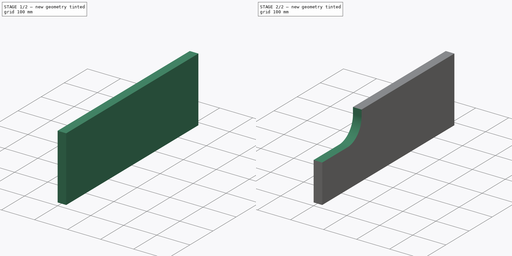
[diagram: build sequence overview — one tinted view per stage of 2, left to right]
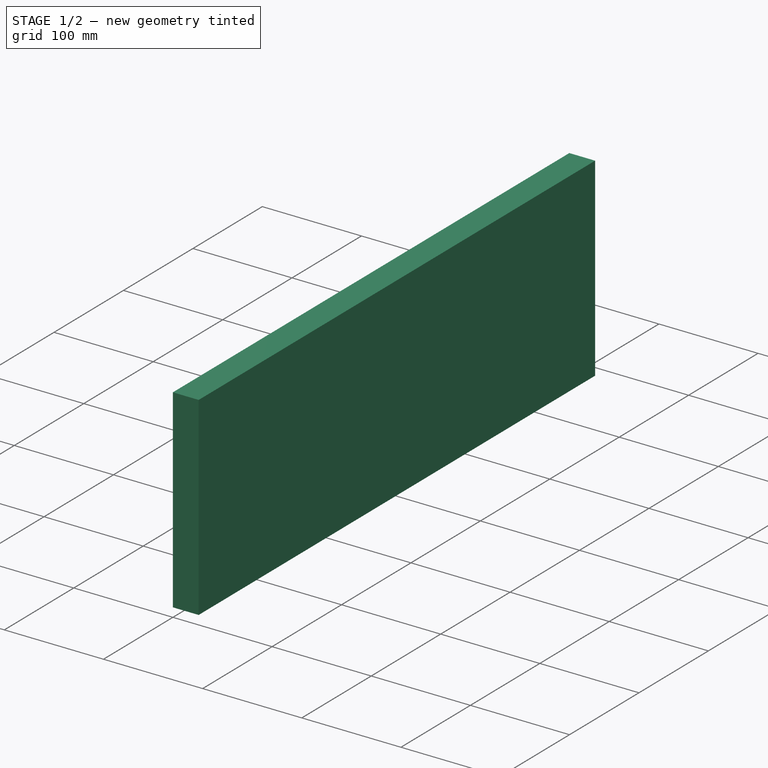
[diagram: stage 1 of 2 — iso view after this stage's code; geometry added in this stage tinted green]
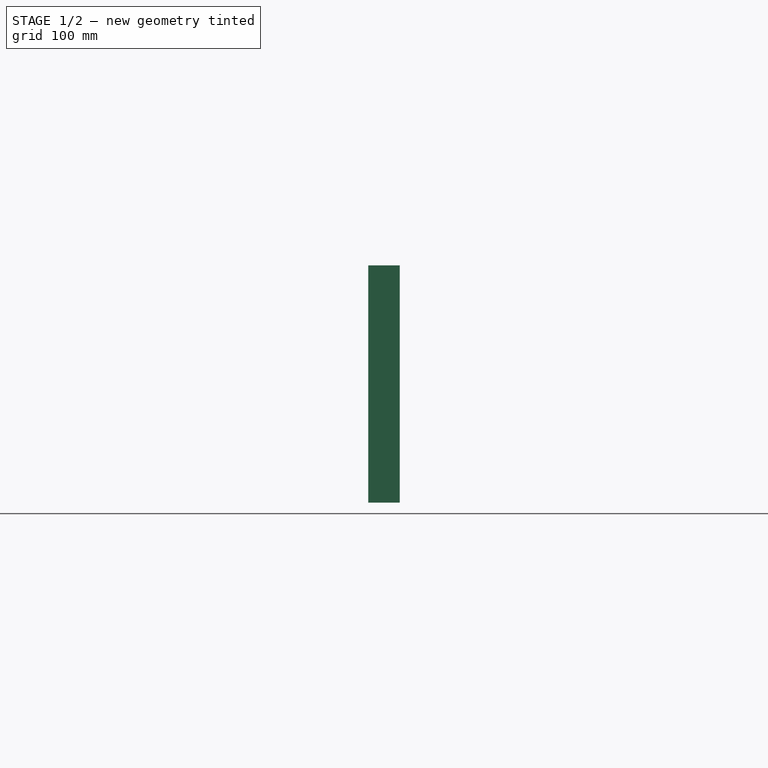
[diagram: stage 1 of 2 — front view after this stage's code; geometry added in this stage tinted green]
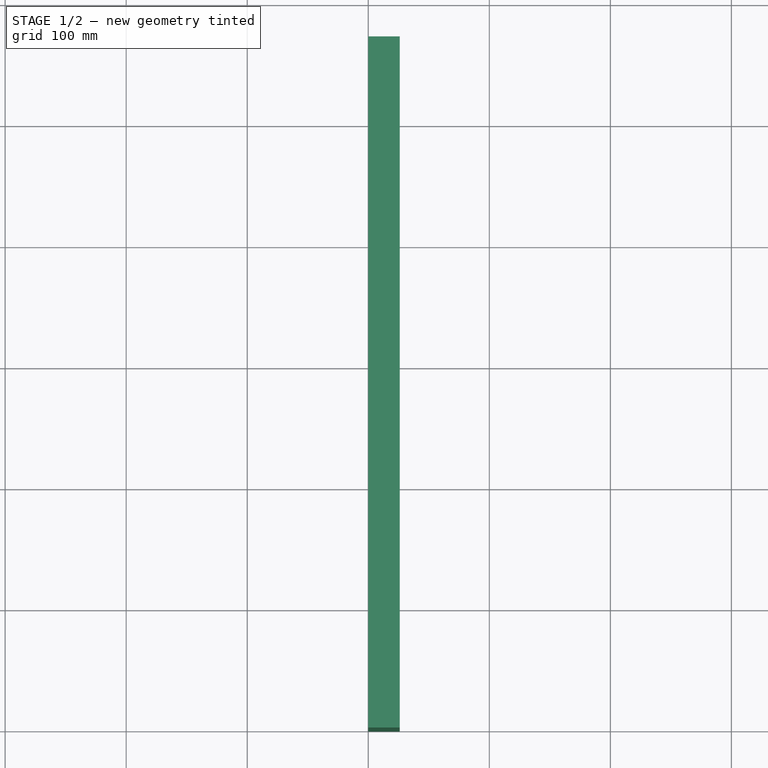
[diagram: stage 1 of 2 — top view after this stage's code; geometry added in this stage tinted green]
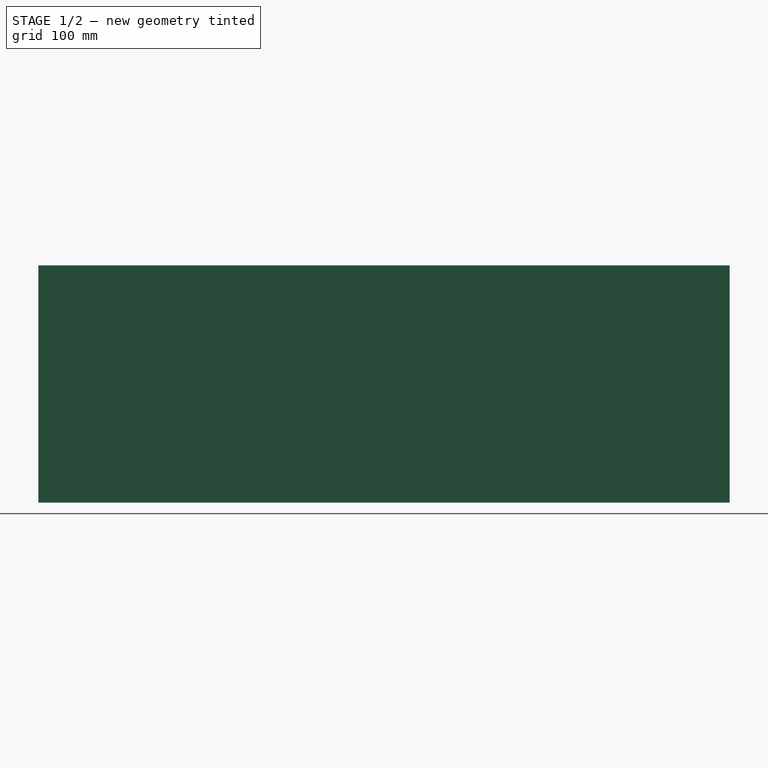
[diagram: stage 1 of 2 — right view after this stage's code; geometry added in this stage tinted green]
FCSTD DOCUMENT  (FreeCAD 0.18R14555 (Git shallow))
Label: JoueConsole
License: All rights reserved
LicenseURL: http://en.wikipedia.org/wiki/All_rights_reserved
objects: Drawing::FeatureViewPython×9, Drawing::FeatureViewPart×3, Part::Box×1, Sketcher::SketchObject×1, PartDesign::FeatureBase×1, PartDesign::Pocket×1, PartDesign::Body×1, App::Part×1, Drawing::FeaturePage×1
note: 6 computed .brp shape members not serialized (recipe doc carries the construction recipe); baked Part::Feature solids carry a one-line shape summary decoded from their .brp

FEATURE [Part::Box] Box  label="Cube"
  AttacherType = Attacher::AttachEngine3D
  Height = 196
  Length = 26
  Width = 571
FEATURE [Sketcher::SketchObject] Sketch
  MapMode = 5
  Placement = pos=(0,0,0) rot=(0.57735,-0.57735,-0.57735;2.0944rad)
  Support = -> [Box]
  sketch-geometry (5):
    g0: ArcOfCircle CenterX=-110 CenterY=176 CenterZ=0 NormalX=0 NormalY=0 NormalZ=1 AngleXU=0 Radius=60 StartAngle=3.14159 EndAngle=4.71239
    g1: LineSegment StartX=-110 StartY=116 StartZ=0 EndX=0 EndY=116 EndZ=0
    g2: LineSegment StartX=-170 StartY=200 StartZ=0 EndX=-170 EndY=176 EndZ=0
    g3: LineSegment StartX=-170 StartY=200 StartZ=0 EndX=0 EndY=200 EndZ=0
    g4: LineSegment StartX=0 StartY=200 StartZ=0 EndX=0 EndY=116 EndZ=0
  constraints (17):
    c: DistanceX(g0,g-1) = 170
    c: DistanceY(g-1,g0) = 176
    c: DistanceY(g-1,g0) = 116
    c: DistanceX(g0,g-1) = 110
    c: Radius(g0) = 60
    c: Horizontal(g1)
    c: Vertical(g2)
    c: Coincident(g2,g0)
    c: DistanceY(g2,g2) = 24
    c: Coincident(g1,g0)
    c: DistanceX(g1,g-1) = 0
    c: Horizontal(g3)
    c: Vertical(g4)
    c: Coincident(g3,g2)
    c: DistanceX(g3,g-1) = 0
    c: Coincident(g4,g3)
    c: Coincident(g4,g1)
FEATURE [Drawing::FeatureViewPython] dim001  # drawing view (typed FeaturePython)
  Rotation = 0
  ViewResult = <g> \n  <line x1="27.208300" y1="107.792000" x2="27.208300" y2="121.000000" style="stroke:rgb(0,0,255);stroke-width:0.30" />\n<line x1="241.333300" y1="107.792000" x2="241.333300" y2="121.000000" style="stroke:rgb(0,0,255);stroke-width:0.30" />\n<line x1="27.208300" y1="120.000000" x2="241.333300" y2="120.000000" style="stroke:rgb(0,0,255);stroke-width:0.30" /> \n  <polygon points="241.333300,120.000000 238.333300,119.000000 237.333300,120.000000 238.333300,121.000000" style="fill:rgb(0,0,255);stroke:rgb(0,0,255);stroke-width:0" /><polygon points="27.208300,120.000000 30.208300,121.000000 31.208300,120.000000 30.208300,119.000000" style="fill:rgb(0,0,255);stroke:rgb(0,0,255);stroke-width:0" /> \n  <text x="134.270800" y="118.000000" font-family="Verdana" font-size="3.6" fill="rgb(0,0,255)" text-anchor="middle" transform="rotate(0.000000 134.270800,118.000000)" >571</text> </g>
  Visible = false
  X = 0
  Y = 0
  arrowL1 = 3
  arrowL2 = 1
  arrowW = 2
  arrow_scheme = 0
  autoPlaceOffset = 2
  autoPlaceText = true
  click1_x = 130.18
  click1_y = 120
  click2_x = 130.18
  click2_y = 120
  comma_decimal_place = false
  dimension_line_overshoot = 1
  gap_datum_points = 2
  halfDimension_linear = false
  lineColor = rgb(0,0,255)
  strokeWidth = 0.3
  textFormat_linear = %(value)3.0f
  textRenderer_color = rgb(0,0,255)
  textRenderer_family = Verdana
  textRenderer_size = 3.6
  unit_custom_scale = 1
  unit_scheme = 0
FEATURE [Drawing::FeatureViewPython] dim002  # drawing view (typed FeaturePython)
  Rotation = 0
  ViewResult = <g> \n  <line x1="25.208300" y1="105.792000" x2="18.987354" y2="105.792000" style="stroke:rgb(0,0,255);stroke-width:0.30" />\n<line x1="25.208300" y1="62.292000" x2="18.987354" y2="62.292000" style="stroke:rgb(0,0,255);stroke-width:0.30" />\n<line x1="19.987354" y1="105.792000" x2="19.987354" y2="62.292000" style="stroke:rgb(0,0,255);stroke-width:0.30" /> \n  <polygon points="19.987354,62.292000 18.987354,65.292000 19.987354,66.292000 20.987354,65.292000" style="fill:rgb(0,0,255);stroke:rgb(0,0,255);stroke-width:0" /><polygon points="19.987354,105.792000 20.987354,102.792000 19.987354,101.792000 18.987354,102.792000" style="fill:rgb(0,0,255);stroke:rgb(0,0,255);stroke-width:0" /> \n  <text x="17.987354" y="84.042000" font-family="Verdana" font-size="3.6" fill="rgb(0,0,255)" text-anchor="middle" transform="rotate(-90.000000 17.987354,84.042000)" >116</text> </g>
  Visible = false
  X = 0
  Y = 0
  arrowL1 = 3
  arrowL2 = 1
  arrowW = 2
  arrow_scheme = 0
  autoPlaceOffset = 2
  autoPlaceText = true
  click1_x = 19.9874
  click1_y = 80
  click2_x = 19.9874
  click2_y = 80
  comma_decimal_place = false
  dimension_line_overshoot = 1
  gap_datum_points = 2
  halfDimension_linear = false
  lineColor = rgb(0,0,255)
  strokeWidth = 0.3
  textFormat_linear = %(value)3.0f
  textRenderer_color = rgb(0,0,255)
  textRenderer_family = Verdana
  textRenderer_size = 3.6
  unit_custom_scale = 1
  unit_scheme = 0
FEATURE [Drawing::FeatureViewPython] dim003  # drawing view (typed FeaturePython)
  Rotation = 0
  ViewResult = <g> \n  <line x1="27.208300" y1="64.292000" x2="27.208300" y2="76.000000" style="stroke:rgb(0,0,255);stroke-width:0.30" />\n<line x1="68.458300" y1="64.292000" x2="68.458300" y2="76.000000" style="stroke:rgb(0,0,255);stroke-width:0.30" />\n<line x1="27.208300" y1="75.000000" x2="68.458300" y2="75.000000" style="stroke:rgb(0,0,255);stroke-width:0.30" /> \n  <polygon points="68.458300,75.000000 65.458300,74.000000 64.458300,75.000000 65.458300,76.000000" style="fill:rgb(0,0,255);stroke:rgb(0,0,255);stroke-width:0" /><polygon points="27.208300,75.000000 30.208300,76.000000 31.208300,75.000000 30.208300,74.000000" style="fill:rgb(0,0,255);stroke:rgb(0,0,255);stroke-width:0" /> \n  <text x="47.833300" y="73.000000" font-family="Verdana" font-size="3.6" fill="rgb(0,0,255)" text-anchor="middle" transform="rotate(0.000000 47.833300,73.000000)" >110</text> </g>
  Visible = false
  X = 0
  Y = 0
  arrowL1 = 3
  arrowL2 = 1
  arrowW = 2
  arrow_scheme = 0
  autoPlaceOffset = 2
  autoPlaceText = true
  click1_x = 40.0224
  click1_y = 75
  click2_x = 40.0224
  click2_y = 75
  comma_decimal_place = false
  dimension_line_overshoot = 1
  gap_datum_points = 2
  halfDimension_linear = false
  lineColor = rgb(0,0,255)
  strokeWidth = 0.3
  textFormat_linear = %(value)3.0f
  textRenderer_color = rgb(0,0,255)
  textRenderer_family = Verdana
  textRenderer_size = 3.6
  unit_custom_scale = 1
  unit_scheme = 0
FEATURE [Drawing::FeatureViewPython] dim004  # drawing view (typed FeaturePython)
  Rotation = 0
  ViewResult = <g> \n  <line x1="90.958300" y1="30.292000" x2="90.958300" y2="19.000000" style="stroke:rgb(0,0,255);stroke-width:0.30" />\n<line x1="241.333300" y1="30.292000" x2="241.333300" y2="19.000000" style="stroke:rgb(0,0,255);stroke-width:0.30" />\n<line x1="90.958300" y1="20.000000" x2="241.333300" y2="20.000000" style="stroke:rgb(0,0,255);stroke-width:0.30" /> \n  <polygon points="241.333300,20.000000 238.333300,19.000000 237.333300,20.000000 238.333300,21.000000" style="fill:rgb(0,0,255);stroke:rgb(0,0,255);stroke-width:0" /><polygon points="90.958300,20.000000 93.958300,21.000000 94.958300,20.000000 93.958300,19.000000" style="fill:rgb(0,0,255);stroke:rgb(0,0,255);stroke-width:0" /> \n  <text x="166.145800" y="18.000000" font-family="Verdana" font-size="3.6" fill="rgb(0,0,255)" text-anchor="middle" transform="rotate(0.000000 166.145800,18.000000)" >401</text> </g>
  Visible = false
  X = 0
  Y = 0
  arrowL1 = 3
  arrowL2 = 1
  arrowW = 2
  arrow_scheme = 0
  autoPlaceOffset = 2
  autoPlaceText = true
  click1_x = 195.294
  click1_y = 20
  click2_x = 195.294
  click2_y = 20
  comma_decimal_place = false
  dimension_line_overshoot = 1
  gap_datum_points = 2
  halfDimension_linear = false
  lineColor = rgb(0,0,255)
  strokeWidth = 0.3
  textFormat_linear = %(value)3.0f
  textRenderer_color = rgb(0,0,255)
  textRenderer_family = Verdana
  textRenderer_size = 3.6
  unit_custom_scale = 1
  unit_scheme = 0
FEATURE [Drawing::FeatureViewPython] dim005  # drawing view (typed FeaturePython)
  Rotation = 0
  ViewResult = <g> \n  <line x1="243.333300" y1="128.083000" x2="256.399635" y2="128.083000" style="stroke:rgb(0,0,255);stroke-width:0.30" />\n<line x1="243.333300" y1="137.833000" x2="256.399635" y2="137.833000" style="stroke:rgb(0,0,255);stroke-width:0.30" />\n<line x1="255.399635" y1="128.083000" x2="255.399635" y2="137.833000" style="stroke:rgb(0,0,255);stroke-width:0.30" /> \n  <polygon points="255.399635,137.833000 254.399635,140.833000 255.399635,141.833000 256.399635,140.833000" style="fill:rgb(0,0,255);stroke:rgb(0,0,255);stroke-width:0" /><polygon points="255.399635,128.083000 256.399635,125.083000 255.399635,124.083000 254.399635,125.083000" style="fill:rgb(0,0,255);stroke:rgb(0,0,255);stroke-width:0" /> \n  <text x="253.399635" y="132.958000" font-family="Verdana" font-size="3.6" fill="rgb(0,0,255)" text-anchor="middle" transform="rotate(-90.000000 253.399635,132.958000)" > 26</text> </g>
  Visible = false
  X = 0
  Y = 0
  arrowL1 = 3
  arrowL2 = 1
  arrowW = 2
  arrow_scheme = 0
  autoPlaceOffset = 2
  autoPlaceText = true
  click1_x = 255.4
  click1_y = 129.691
  click2_x = 255.4
  click2_y = 129.691
  comma_decimal_place = false
  dimension_line_overshoot = 1
  gap_datum_points = 2
  halfDimension_linear = false
  lineColor = rgb(0,0,255)
  strokeWidth = 0.3
  textFormat_linear = %(value)3.0f
  textRenderer_color = rgb(0,0,255)
  textRenderer_family = Verdana
  textRenderer_size = 3.6
  unit_custom_scale = 1
  unit_scheme = 0
FEATURE [Drawing::FeatureViewPython] dim006  # drawing view (typed FeaturePython)
  Rotation = 0
  ViewResult = <g> \n  <line x1="92.958300" y1="39.792000" x2="106.136477" y2="39.792000" style="stroke:rgb(0,0,255);stroke-width:0.30" />\n<line x1="92.958300" y1="32.292000" x2="106.136477" y2="32.292000" style="stroke:rgb(0,0,255);stroke-width:0.30" />\n<line x1="105.136477" y1="39.792000" x2="105.136477" y2="32.292000" style="stroke:rgb(0,0,255);stroke-width:0.30" /> \n  <polygon points="105.136477,32.292000 106.136477,29.292000 105.136477,28.292000 104.136477,29.292000" style="fill:rgb(0,0,255);stroke:rgb(0,0,255);stroke-width:0" /><polygon points="105.136477,39.792000 104.136477,42.792000 105.136477,43.792000 106.136477,42.792000" style="fill:rgb(0,0,255);stroke:rgb(0,0,255);stroke-width:0" /> \n  <text x="103.136477" y="36.042000" font-family="Verdana" font-size="3.6" fill="rgb(0,0,255)" text-anchor="middle" transform="rotate(-90.000000 103.136477,36.042000)" > 20</text> </g>
  Visible = false
  X = 0
  Y = 0
  arrowL1 = 3
  arrowL2 = 1
  arrowW = 2
  arrow_scheme = 0
  autoPlaceOffset = 2
  autoPlaceText = true
  click1_x = 105.136
  click1_y = 35
  click2_x = 105.136
  click2_y = 35
  comma_decimal_place = false
  dimension_line_overshoot = 1
  gap_datum_points = 2
  halfDimension_linear = false
  lineColor = rgb(0,0,255)
  strokeWidth = 0.3
  textFormat_linear = %(value)3.0f
  textRenderer_color = rgb(0,0,255)
  textRenderer_family = Verdana
  textRenderer_size = 3.6
  unit_custom_scale = 1
  unit_scheme = 0
FEATURE [Drawing::FeatureViewPython] rad001  # drawing view (typed FeaturePython)
  Rotation = 0
  ViewResult = <g>  <circle cx ="68.458300" cy ="39.792000" r="0.500000" stroke="none" fill="rgb(0,0,255)" /> \n<line x1="85.000000" y1="55.000000" x2="68.458300" y2="39.792000" style="stroke:rgb(0,0,255);stroke-width:0.30" />\n<polygon points="85.021918,55.020151 83.490242,52.253570 82.077275,52.312924 82.136629,53.725891" style="fill:rgb(0,0,255);stroke:rgb(0,0,255);stroke-width:0" />\n<line x1="85.000000" y1="55.000000" x2="110.000000" y2="55.000000" style="stroke:rgb(0,0,255);stroke-width:0.30" />\n<text x="97.500000" y="53.000000" font-family="Verdana" font-size="3.6" fill="rgb(0,0,255)" text-anchor="middle" transform="rotate(0.000000 97.500000,53.000000)" >R 60</text> </g>
  Visible = false
  X = 0
  Y = 0
  arrowL1 = 3
  arrowL2 = 1
  arrowW = 2
  arrow_scheme = 0
  autoPlaceOffset = 2
  autoPlaceText = true
  centerPointDia = 1
  click1_x = 85
  click1_y = 55
  click2_x = 110
  click2_y = 60
  click3_x = 110
  click3_y = 60
  comma_decimal_place = false
  lineColor = rgb(0,0,255)
  strokeWidth = 0.3
  textFormat_radial = R%(value)3.0f
  textRenderer_color = rgb(0,0,255)
  textRenderer_family = Verdana
  textRenderer_size = 3.6
  unit_custom_scale = 1
  unit_scheme = 0
FEATURE [PartDesign::FeatureBase] BaseFeature
  BaseFeature = -> Box
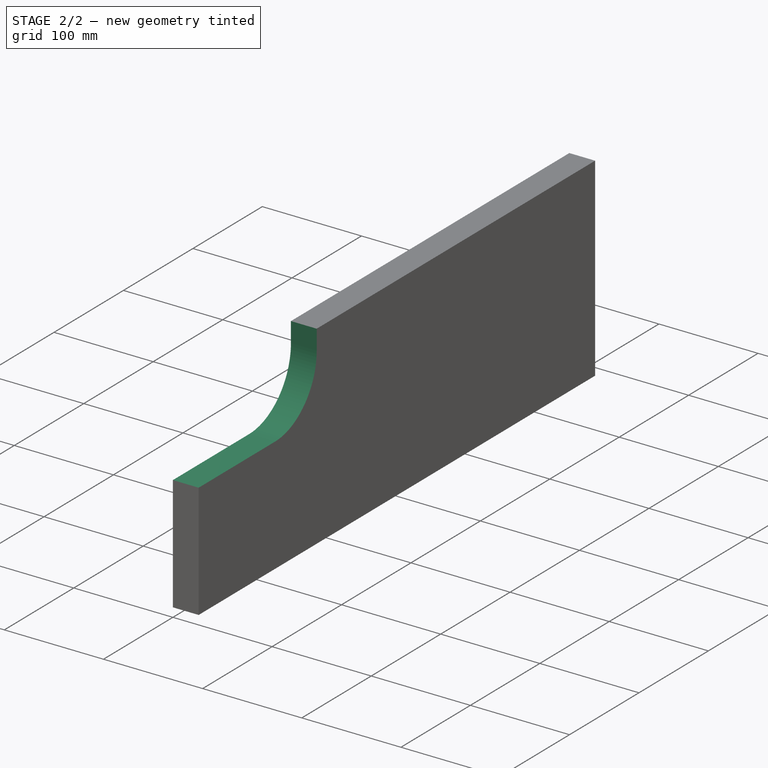
[diagram: stage 2 of 2 — iso view after this stage's code; geometry added in this stage tinted green]
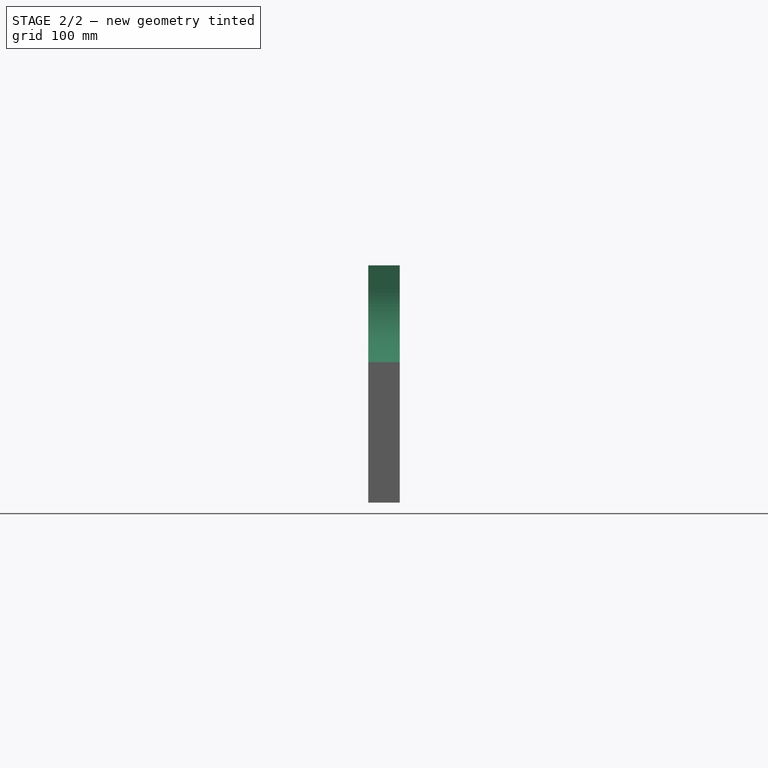
[diagram: stage 2 of 2 — front view after this stage's code; geometry added in this stage tinted green]
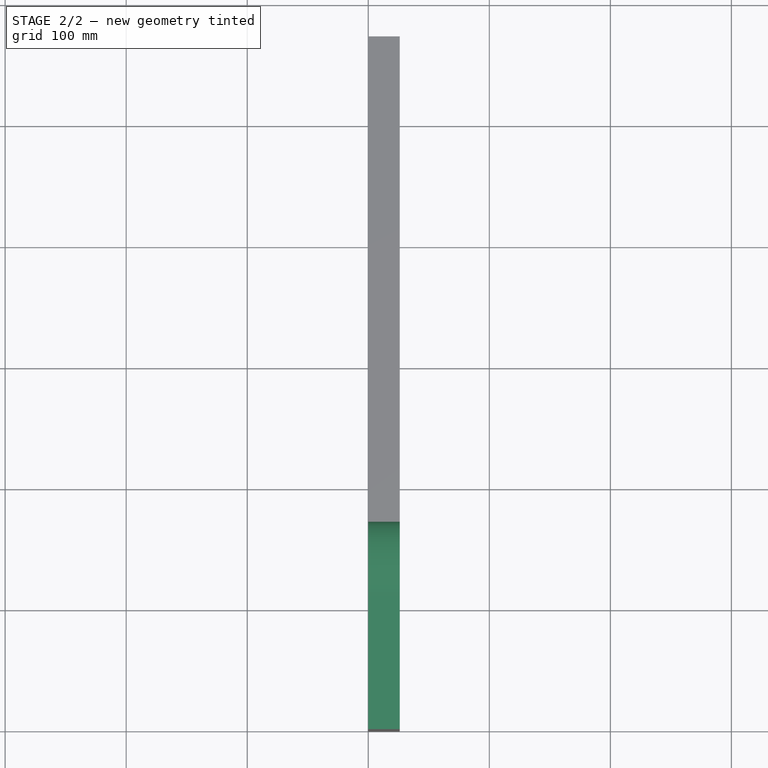
[diagram: stage 2 of 2 — top view after this stage's code; geometry added in this stage tinted green]
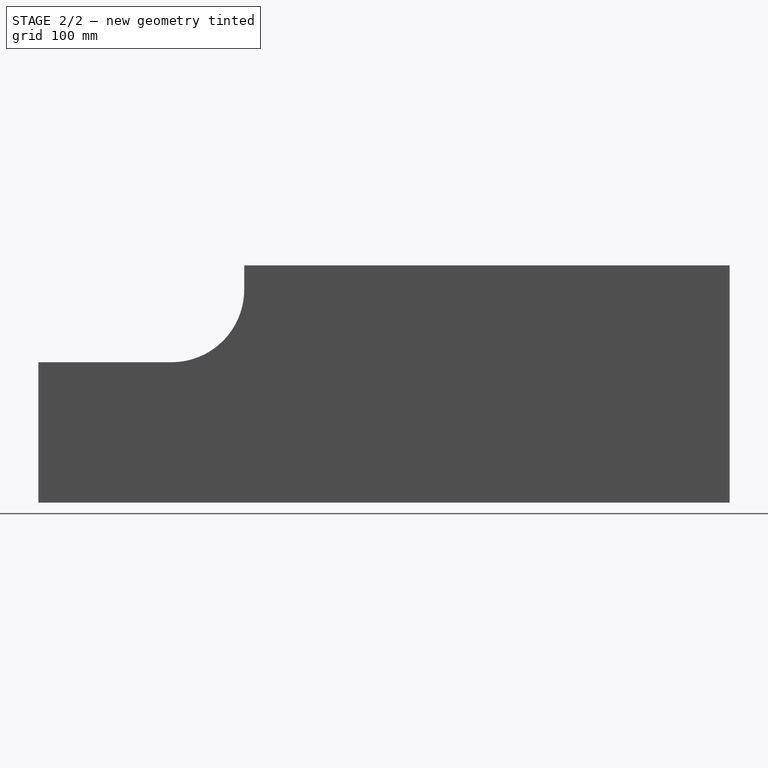
[diagram: stage 2 of 2 — right view after this stage's code; geometry added in this stage tinted green]
FEATURE [PartDesign::Pocket] Pocket
  BaseFeature = -> BaseFeature
  Length = 5
  Length2 = 100
  Profile = -> Sketch
  Refine = true
  Type = 1
FEATURE [PartDesign::Body] PocketBody
  BaseFeature = -> Box
  Group = -> [BaseFeature,Sketch,Pocket]
  Origin = -> Origin001
  Tip = -> Pocket
FEATURE [Drawing::FeatureViewPart] Ortho  label="Ortho_0_0"
  Direction = (1,0,0)
  HiddenWidth = 0.15
  LineWidth = 0.35
  Rotation = -90
  Scale = 0.375
  ShowHiddenLines = false
  ShowSmoothLines = false
  Source = -> PocketBody
  Tolerance = 0.05
  ViewResult = <g id="Ortho_0_0"\n   transform="rotate(-90,27.2083,105.792) translate(27.2083,105.792) scale(0.375,0.375)"\n  >\n<g   fill="none"\n   stroke="rgb(0, 0, 0)"\n   stroke-linecap="butt"\n   stroke-linejoin="miter"\n   stroke-width="0.933333"\n   transform="scale(1,-1)"\n  >\n<path id= "1" d=" M 0 0 L 116 0 " />\n<path id= "2" d=" M 116 0 L 116 -110 " />\n<path d="M176 -170 A60 60 0 0 0 116 -110" /><path id= "4" d=" M 176 -170 L 196 -170 " />\n<path id= "5" d=" M 196 -170 L 196 -571 " />\n<path id= "6" d=" M 0 -571 L 196 -571 " />\n<path id= "7" d=" M 0 0 L 0 -571 " />\n</g>\n</g>
  Visible = false
  X = 27.2083
  Y = 105.792
FEATURE [Drawing::FeatureViewPart] Ortho002  label="Ortho_1_0"
  Direction = (0,-1,0)
  HiddenWidth = 0.15
  LineWidth = 0.35
  Rotation = 90
  Scale = 0.375
  ShowHiddenLines = false
  ShowSmoothLines = false
  Source = -> PocketBody
  Tolerance = 0.05
  ViewResult = <g id="Ortho_1_0"\n   transform="rotate(90,258.167,105.792) translate(258.167,105.792) scale(0.375,0.375)"\n  >\n<g   fill="none"\n   stroke="rgb(0, 0, 0)"\n   stroke-linecap="butt"\n   stroke-linejoin="miter"\n   stroke-width="0.933333"\n   transform="scale(1,-1)"\n  >\n<path id= "1" d=" M 0 0 L -116 0 " />\n<path d="M-176,0 L-169.282,0  L-162.649,0  L-156.183,0  L-149.967,0  L-144.078,0  L-138.591,0  L-133.574,0  L-129.09,0  L-125.197,0  L-121.942,0  L-119.367,0  L-117.504,0  L-116.377,0  L-116,0 " /><path id= "3" d=" M -196 0 L -176 0 " />\n<path id= "4" d=" M 0 26 L -116 26 " />\n<path id= "5" d=" M -116 0 L -116 26 " />\n<path id= "6" d=" M 0 0 L 0 26 " />\n<path d="M-176,26 L-169.282,26  L-162.649,26  L-156.183,26  L-149.967,26  L-144.078,26  L-138.591,26  L-133.574,26  L-129.09,26  L-125.197,26  L-121.942,26  L-119.367,26  L-117.504,26  L-116.377,26  L-116,26 " /><path id= "8" d=" M -176 26 L -196 26 " />\n<path id= "9" d=" M -196 26 L -196 0 " />\n</g>\n</g>
  Visible = false
  X = 258.167
  Y = 105.792
FEATURE [Drawing::FeatureViewPart] Ortho003  label="Ortho_0_-1"
  Direction = (0,0,1)
  HiddenWidth = 0.15
  LineWidth = 0.35
  Rotation = 90
  Scale = 0.375
  ShowHiddenLines = false
  ShowSmoothLines = false
  Source = -> PocketBody
  Tolerance = 0.05
  ViewResult = <g id="Ortho_0_-1"\n   transform="rotate(90,27.2083,128.083) translate(27.2083,128.083) scale(0.375,0.375)"\n  >\n<g   fill="none"\n   stroke="rgb(0, 0, 0)"\n   stroke-linecap="butt"\n   stroke-linejoin="miter"\n   stroke-width="0.933333"\n   transform="scale(1,-1)"\n  >\n<path id= "1" d=" M 0 110 L 0 0 " />\n<path d="M0,170 L0,169.623  L0,168.496  L0,166.633  L0,164.058  L0,160.803  L0,156.91  L0,152.426  L0,147.409  L0,141.922  L0,136.033  L0,129.817  L0,123.351  L0,116.718  L0,110 " /><path id= "3" d=" M 0 170 L 0 571 " />\n<path id= "4" d=" M 0 0 L 26 0 " />\n<path id= "5" d=" M 26 0 L 26 110 " />\n<path d="M26,170 L26,169.623  L26,168.496  L26,166.633  L26,164.058  L26,160.803  L26,156.91  L26,152.426  L26,147.409  L26,141.922  L26,136.033  L26,129.817  L26,123.351  L26,116.718  L26,110 " /><path id= "7" d=" M 26 170 L 0 170 " />\n<path id= "8" d=" M 0 571 L 26 571 " />\n<path id= "9" d=" M 26 170 L 26 571 " />\n</g>\n</g>
  Visible = false
  X = 27.2083
  Y = 128.083
FEATURE [App::Part] Part
  Group = -> [PocketBody]
  License = CC BY 3.0
  LicenseURL = http://creativecommons.org/licenses/by/3.0/
  Origin = -> Origin
FEATURE [Drawing::FeatureViewPython] dim007  # drawing view (typed FeaturePython)
  Rotation = 0
  ViewResult = <g> \n  <line x1="239.333300" y1="105.792000" x2="224.000000" y2="105.792000" style="stroke:rgb(0,0,255);stroke-width:0.30" />\n<line x1="239.333300" y1="32.292000" x2="224.000000" y2="32.292000" style="stroke:rgb(0,0,255);stroke-width:0.30" />\n<line x1="225.000000" y1="105.792000" x2="225.000000" y2="32.292000" style="stroke:rgb(0,0,255);stroke-width:0.30" /> \n  <polygon points="225.000000,32.292000 224.000000,35.292000 225.000000,36.292000 226.000000,35.292000" style="fill:rgb(0,0,255);stroke:rgb(0,0,255);stroke-width:0" /><polygon points="225.000000,105.792000 226.000000,102.792000 225.000000,101.792000 224.000000,102.792000" style="fill:rgb(0,0,255);stroke:rgb(0,0,255);stroke-width:0" /> \n  <text x="223.000000" y="69.042000" font-family="Verdana" font-size="3.6" fill="rgb(0,0,255)" text-anchor="middle" transform="rotate(-90.000000 223.000000,69.042000)" >196</text> </g>
  Visible = false
  X = 0
  Y = 0
  arrowL1 = 3
  arrowL2 = 1
  arrowW = 2
  arrow_scheme = 0
  autoPlaceOffset = 2
  autoPlaceText = true
  click1_x = 225
  click1_y = 65
  click2_x = 225
  click2_y = 65
  comma_decimal_place = false
  dimension_line_overshoot = 1
  gap_datum_points = 2
  halfDimension_linear = false
  lineColor = rgb(0,0,255)
  strokeWidth = 0.3
  textFormat_linear = %(value)3.0f
  textRenderer_color = rgb(0,0,255)
  textRenderer_family = Verdana
  textRenderer_size = 3.6
  unit_custom_scale = 1
  unit_scheme = 0
FEATURE [Drawing::FeatureViewPython] dim008  # drawing view (typed FeaturePython)
  Rotation = 0
  ViewResult = <g> <line x1="90.958300" y1="139.833000" x2="90.958300" y2="156.000000" style="stroke:rgb(0,0,255);stroke-width:0.30" />\n<line x1="27.208300" y1="139.833000" x2="27.208300" y2="156.000000" style="stroke:rgb(0,0,255);stroke-width:0.30" />\n<line x1="90.958300" y1="155.000000" x2="27.208300" y2="155.000000" style="stroke:rgb(0,0,255);stroke-width:0.30" />\n<polygon points="90.958300,155.000000 87.958300,154.000000 86.958300,155.000000 87.958300,156.000000" style="fill:rgb(0,0,255);stroke:rgb(0,0,255);stroke-width:0" />\n<polygon points="27.208300,155.000000 30.208300,156.000000 31.208300,155.000000 30.208300,154.000000" style="fill:rgb(0,0,255);stroke:rgb(0,0,255);stroke-width:0" />\n<text x="59.083300" y="153.000000" font-family="Verdana" font-size="3.6" fill="rgb(0,0,255)" text-anchor="middle" transform="rotate(0.000000 59.083300,153.000000)" >170</text> </g> 
  Visible = false
  X = 0
  Y = 0
  arrowL1 = 3
  arrowL2 = 1
  arrowW = 2
  arrow_scheme = 0
  autoPlaceOffset = 2
  autoPlaceText = true
  click1_x = 25
  click1_y = 155
  click2_x = 25
  click2_y = 155
  comma_decimal_place = false
  dimension_line_overshoot = 1
  gap_datum_points = 2
  halfDimension_linear = false
  lineColor = rgb(0,0,255)
  strokeWidth = 0.3
  textFormat_linear = %(value)3.0f
  textRenderer_color = rgb(0,0,255)
  textRenderer_family = Verdana
  textRenderer_size = 3.6
  unit_custom_scale = 1
  unit_scheme = 0
FEATURE [Drawing::FeaturePage] Page
  EditableTexts = AUTHOR NAME | DRAWING TITLE | FreeCAD DRAWING | A4 | X / Y | SCALE | PN | DN | DD/MM/YYYY | REV A
  Group = -> [Ortho,Ortho002,Ortho003,dim001,dim002,dim003,dim004,dim005,dim006,rad001,dim007,dim008]
  Template = /app/freecad/data/Mod/Drawing/Templates/A4_Landscape_ISO7200.svg
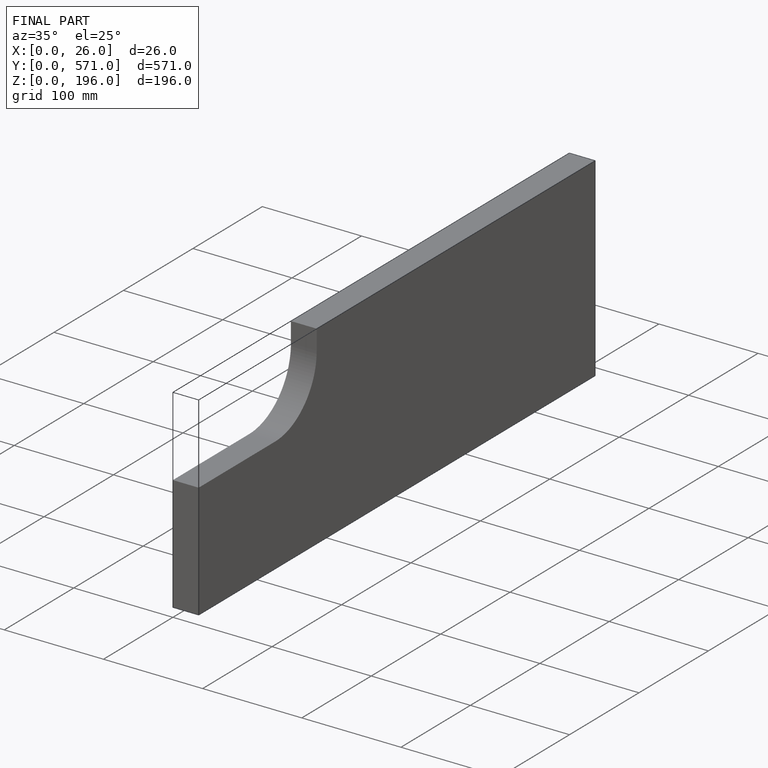
[diagram: finished part — iso view with bounding-box wireframe]
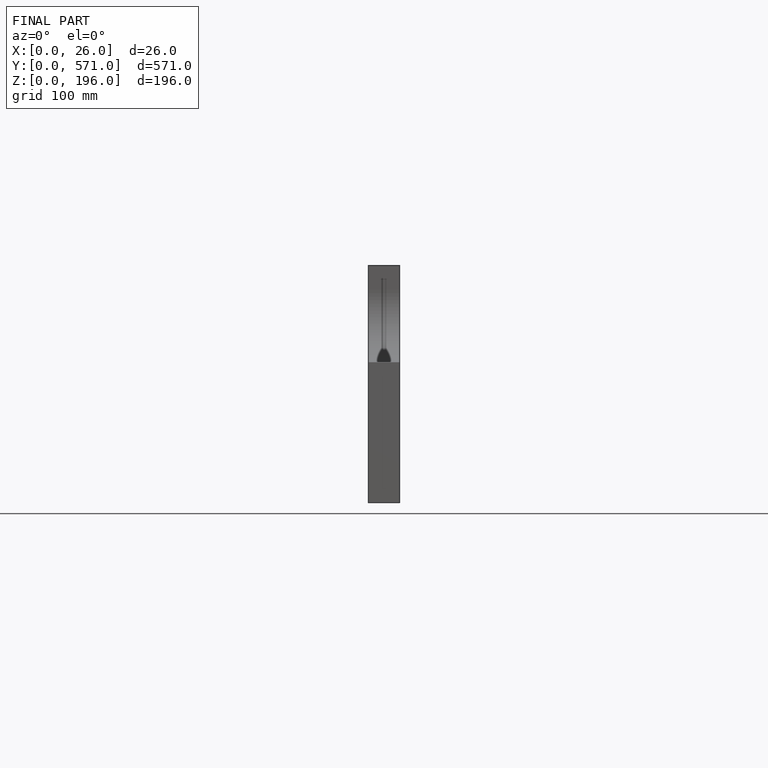
[diagram: finished part — front view with bounding-box wireframe]
